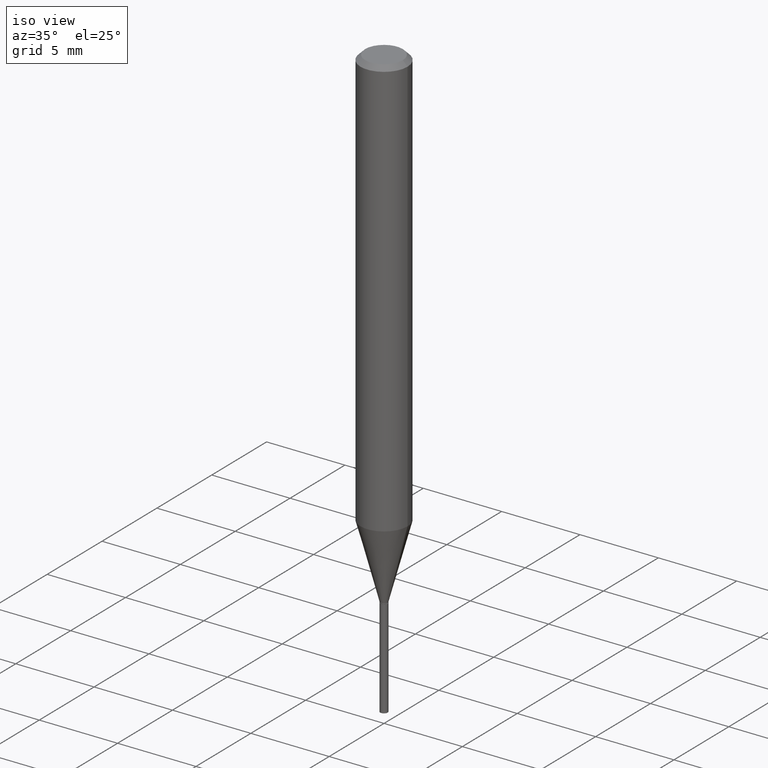
[diagram: clean part render]
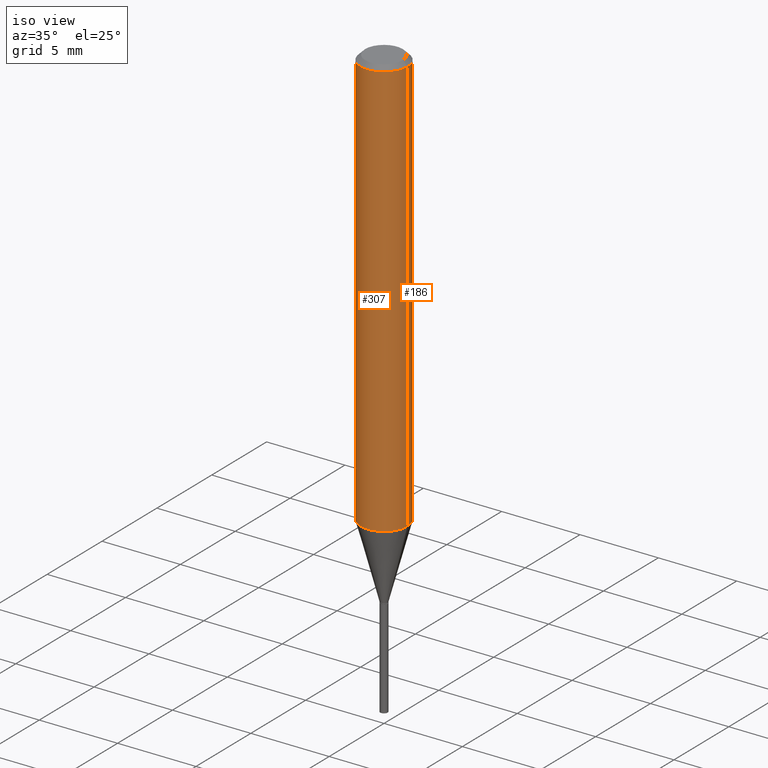
[diagram: same view with one multi-face feature highlighted, each face labeled with its STEP entity id]
A machine part, iso view. The highlighted faces form ONE feature: a constant-radius fillet chain: 2 tangent blend faces with common blend radius 1.4999 mm. The faces share edges in the B-rep.
Their STEP definitions:
[1] entity #307 (Cylinder):
#63 = DIRECTION ( 'NONE',  ( 1.000000000000000000, -6.982962677686264344E-15, 0.000000000000000000 ) ) ;
#67 = CIRCLE ( 'NONE', #335, 0.05905000000000013710 ) ;
#73 = CARTESIAN_POINT ( 'NONE',  ( -0.05905000000000006771, 4.195754854663396409E-16, -2.904631170795525045E-30 ) ) ;
#106 = DIRECTION ( 'NONE',  ( -2.445468806185136877E-29, 3.491481338843145188E-15, 1.000000000000000000 ) ) ;
#111 = CYLINDRICAL_SURFACE ( 'NONE', #425, 0.05905000000000006771 ) ;
#131 = CARTESIAN_POINT ( 'NONE',  ( -0.05905000000000013710, -3.265487090077642716E-15, -1.055443869783069699 ) ) ;
#135 = EDGE_CURVE ( 'NONE', #177, #474, #67, .T. ) ;
#149 = DIRECTION ( 'NONE',  ( 1.000000000000000000, -6.982962677686266711E-15, 0.000000000000000000 ) ) ;
#153 = VECTOR ( 'NONE', #106, 39.37007874015748143 ) ;
#174 = VECTOR ( 'NONE', #415, 39.37007874015748143 ) ;
#177 = VERTEX_POINT ( 'NONE', #131 ) ;
#179 = CARTESIAN_POINT ( 'NONE',  ( 2.888098660104664204E-31, -4.123439461173780263E-17, -0.01181000000000007218 ) ) ;
#215 = CARTESIAN_POINT ( 'NONE',  ( 0.05904999999999999832, -4.535783407291118600E-16, -0.01181000000000007218 ) ) ;
#216 = CARTESIAN_POINT ( 'NONE',  ( 0.000000000000000000, 0.000000000000000000, 0.000000000000000000 ) ) ;
#229 = CARTESIAN_POINT ( 'NONE',  ( 0.05905000000000013710, -4.097406521661357129E-15, -1.055443869783069699 ) ) ;
#250 = CARTESIAN_POINT ( 'NONE',  ( 2.581055060233824275E-29, -3.685062575543982998E-15, -1.055443869783069699 ) ) ;
#256 = CARTESIAN_POINT ( 'NONE',  ( -0.05904999999999999832, -1.443572999611519884E-15, -0.01181000000000007218 ) ) ;
#262 = LINE ( 'NONE', #293, #153 ) ;
#265 = VERTEX_POINT ( 'NONE', #215 ) ;
#293 = CARTESIAN_POINT ( 'NONE',  ( 0.05905000000000006771, -4.123439461173745257E-16, 2.879382386107503723E-30 ) ) ;
#294 = DIRECTION ( 'NONE',  ( -2.445468806185136597E-29, 3.491481338843145583E-15, 1.000000000000000000 ) ) ;
#307 = ADVANCED_FACE ( 'NONE', ( #486 ), #111, .T. ) ;
#323 = EDGE_CURVE ( 'NONE', #474, #265, #262, .T. ) ;
#327 = DIRECTION ( 'NONE',  ( 1.000000000000000000, -6.982962677686266711E-15, 4.876176775795936353E-29 ) ) ;
#335 = AXIS2_PLACEMENT_3D ( 'NONE', #250, #436, #63 ) ;
#336 = CIRCLE ( 'NONE', #475, 0.05904999999999999832 ) ;
#347 = ORIENTED_EDGE ( 'NONE', *, *, #485, .F. ) ;
#364 = ORIENTED_EDGE ( 'NONE', *, *, #135, .T. ) ;
#375 = LINE ( 'NONE', #73, #174 ) ;
#380 = ORIENTED_EDGE ( 'NONE', *, *, #421, .F. ) ;
#381 = VERTEX_POINT ( 'NONE', #256 ) ;
#415 = DIRECTION ( 'NONE',  ( -2.445468806185136877E-29, 3.491481338843145188E-15, 1.000000000000000000 ) ) ;
#421 = EDGE_CURVE ( 'NONE', #381, #265, #336, .T. ) ;
#425 = AXIS2_PLACEMENT_3D ( 'NONE', #216, #294, #327 ) ;
#436 = DIRECTION ( 'NONE',  ( -2.445468806185136597E-29, 3.491481338843145583E-15, 1.000000000000000000 ) ) ;
#453 = ORIENTED_EDGE ( 'NONE', *, *, #323, .T. ) ;
#464 = EDGE_LOOP ( 'NONE', ( #347, #364, #453, #380 ) ) ;
#474 = VERTEX_POINT ( 'NONE', #229 ) ;
#475 = AXIS2_PLACEMENT_3D ( 'NONE', #179, #483, #149 ) ;
#483 = DIRECTION ( 'NONE',  ( -2.445468806185136597E-29, 3.491481338843145583E-15, 1.000000000000000000 ) ) ;
#485 = EDGE_CURVE ( 'NONE', #177, #381, #375, .T. ) ;
#486 = FACE_OUTER_BOUND ( 'NONE', #464, .T. ) ;
[2] entity #186 (Cylinder):
#22 = EDGE_CURVE ( 'NONE', #474, #177, #252, .T. ) ;
#50 = DIRECTION ( 'NONE',  ( 1.000000000000000000, -6.982962677686264344E-15, 0.000000000000000000 ) ) ;
#73 = CARTESIAN_POINT ( 'NONE',  ( -0.05905000000000006771, 4.195754854663396409E-16, -2.904631170795525045E-30 ) ) ;
#92 = CARTESIAN_POINT ( 'NONE',  ( 0.000000000000000000, 0.000000000000000000, 0.000000000000000000 ) ) ;
#96 = ORIENTED_EDGE ( 'NONE', *, *, #22, .T. ) ;
#99 = DIRECTION ( 'NONE',  ( -2.445468806185136597E-29, 3.491481338843145583E-15, 1.000000000000000000 ) ) ;
#106 = DIRECTION ( 'NONE',  ( -2.445468806185136877E-29, 3.491481338843145188E-15, 1.000000000000000000 ) ) ;
#131 = CARTESIAN_POINT ( 'NONE',  ( -0.05905000000000013710, -3.265487090077642716E-15, -1.055443869783069699 ) ) ;
#148 = CIRCLE ( 'NONE', #465, 0.05904999999999999832 ) ;
#153 = VECTOR ( 'NONE', #106, 39.37007874015748143 ) ;
#161 = ORIENTED_EDGE ( 'NONE', *, *, #407, .F. ) ;
#172 = AXIS2_PLACEMENT_3D ( 'NONE', #270, #423, #50 ) ;
#174 = VECTOR ( 'NONE', #415, 39.37007874015748143 ) ;
#176 = CYLINDRICAL_SURFACE ( 'NONE', #232, 0.05905000000000006771 ) ;
#177 = VERTEX_POINT ( 'NONE', #131 ) ;
#181 = DIRECTION ( 'NONE',  ( -2.445468806185136597E-29, 3.491481338843145583E-15, 1.000000000000000000 ) ) ;
#186 = ADVANCED_FACE ( 'NONE', ( #429 ), #176, .T. ) ;
#215 = CARTESIAN_POINT ( 'NONE',  ( 0.05904999999999999832, -4.535783407291118600E-16, -0.01181000000000007218 ) ) ;
#220 = DIRECTION ( 'NONE',  ( 1.000000000000000000, -6.982962677686266711E-15, 0.000000000000000000 ) ) ;
#229 = CARTESIAN_POINT ( 'NONE',  ( 0.05905000000000013710, -4.097406521661357129E-15, -1.055443869783069699 ) ) ;
#230 = ORIENTED_EDGE ( 'NONE', *, *, #485, .T. ) ;
#231 = EDGE_LOOP ( 'NONE', ( #96, #230, #161, #283 ) ) ;
#232 = AXIS2_PLACEMENT_3D ( 'NONE', #92, #99, #322 ) ;
#252 = CIRCLE ( 'NONE', #172, 0.05905000000000013710 ) ;
#256 = CARTESIAN_POINT ( 'NONE',  ( -0.05904999999999999832, -1.443572999611519884E-15, -0.01181000000000007218 ) ) ;
#262 = LINE ( 'NONE', #293, #153 ) ;
#265 = VERTEX_POINT ( 'NONE', #215 ) ;
#270 = CARTESIAN_POINT ( 'NONE',  ( 2.581055060233824275E-29, -3.685062575543982998E-15, -1.055443869783069699 ) ) ;
#283 = ORIENTED_EDGE ( 'NONE', *, *, #323, .F. ) ;
#293 = CARTESIAN_POINT ( 'NONE',  ( 0.05905000000000006771, -4.123439461173745257E-16, 2.879382386107503723E-30 ) ) ;
#322 = DIRECTION ( 'NONE',  ( 1.000000000000000000, -6.982962677686266711E-15, 4.876176775795936353E-29 ) ) ;
#323 = EDGE_CURVE ( 'NONE', #474, #265, #262, .T. ) ;
#332 = CARTESIAN_POINT ( 'NONE',  ( 2.888098660104664204E-31, -4.123439461173780263E-17, -0.01181000000000007218 ) ) ;
#375 = LINE ( 'NONE', #73, #174 ) ;
#381 = VERTEX_POINT ( 'NONE', #256 ) ;
#407 = EDGE_CURVE ( 'NONE', #265, #381, #148, .T. ) ;
#415 = DIRECTION ( 'NONE',  ( -2.445468806185136877E-29, 3.491481338843145188E-15, 1.000000000000000000 ) ) ;
#423 = DIRECTION ( 'NONE',  ( -2.445468806185136597E-29, 3.491481338843145583E-15, 1.000000000000000000 ) ) ;
#429 = FACE_OUTER_BOUND ( 'NONE', #231, .T. ) ;
#465 = AXIS2_PLACEMENT_3D ( 'NONE', #332, #181, #220 ) ;
#474 = VERTEX_POINT ( 'NONE', #229 ) ;
#485 = EDGE_CURVE ( 'NONE', #177, #381, #375, .T. ) ;